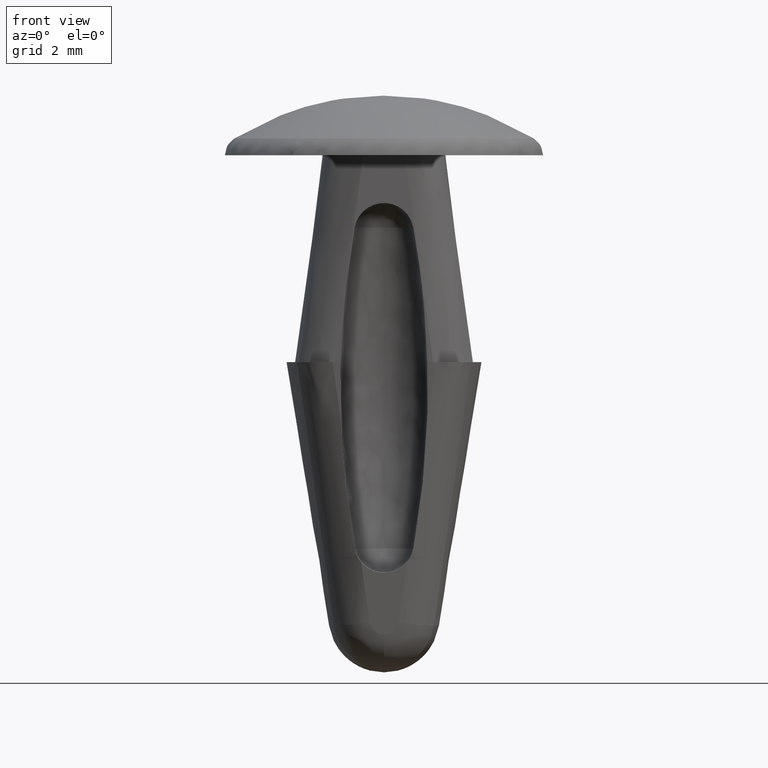
[diagram: clean part render]
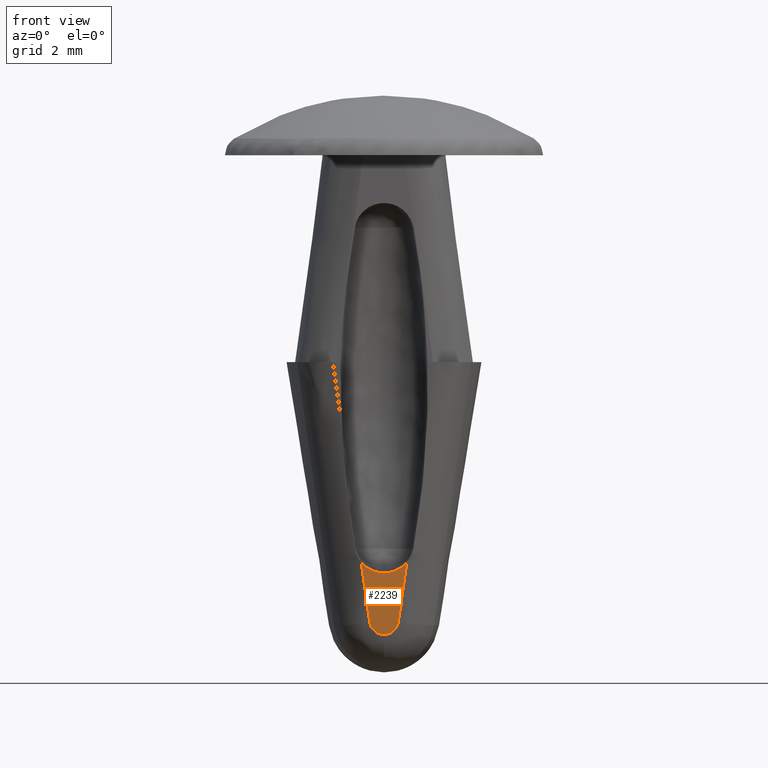
[diagram: same view with one face highlighted and labeled with its STEP entity id]
A machine part, front view. The second image highlights one B-rep face of the part: STEP entity #2239.
In plain terms, the highlighted face is a freeform B-spline surface patch.
Its self-contained STEP definition (entity closure, byte-faithful):
#298=CARTESIAN_POINT('',(5.472814E-009,-1.138355687538824,-12.048769655288041));
#299=VERTEX_POINT('',#298);
#315=CARTESIAN_POINT('',(-0.359079276135008,-1.161558786309562,-11.738178031591399));
#316=VERTEX_POINT('',#315);
#317=CARTESIAN_POINT('',(-0.359079276135008,-1.161558786309562,-11.738178031591399));
#318=CARTESIAN_POINT('',(-0.314616708430746,-1.138355614635077,-12.048770631187178));
#319=CARTESIAN_POINT('',(5.472814E-009,-1.138355687538824,-12.048769655288039));
#327=(BOUNDED_CURVE()B_SPLINE_CURVE(2,(#317,#318,#319),.UNSPECIFIED.,.F.,.U.)B_SPLINE_CURVE_WITH_KNOTS((3,3),(0.0,0.499996973655714),.UNSPECIFIED.)CURVE()GEOMETRIC_REPRESENTATION_ITEM()RATIONAL_B_SPLINE_CURVE((1.0,0.755420271649371,0.999997039270146))REPRESENTATION_ITEM(''));
#328=EDGE_CURVE('',#316,#299,#327,.T.);
#384=CARTESIAN_POINT('',(0.359081388878952,-1.161559197688182,-11.738172524966821));
#385=VERTEX_POINT('',#384);
#399=CARTESIAN_POINT('',(5.472814E-009,-1.138355687538824,-12.048769655288039));
#400=CARTESIAN_POINT('',(0.000001444016059,-1.138355687538463,-12.048769655292878));
#401=CARTESIAN_POINT('',(0.000002882559303,-1.138355687538951,-12.048769655286341));
#402=CARTESIAN_POINT('',(0.314622766314057,-1.138355794355715,-12.048768225485881));
#403=CARTESIAN_POINT('',(0.359081388878952,-1.161559197688182,-11.738172524966821));
#411=(BOUNDED_CURVE()B_SPLINE_CURVE(2,(#399,#400,#401,#402,#403),.UNSPECIFIED.,.F.,.U.)B_SPLINE_CURVE_WITH_KNOTS((3,2,3),(0.499996973655714,0.500000000000000,1.0),.UNSPECIFIED.)CURVE()GEOMETRIC_REPRESENTATION_ITEM()RATIONAL_B_SPLINE_CURVE((0.999997039270146,0.999998519626113,1.0,0.755418791275484,1.0))REPRESENTATION_ITEM(''));
#412=EDGE_CURVE('',#299,#385,#411,.T.);
#633=CARTESIAN_POINT('',(-0.574505067719825,-1.274070228132522,-10.232124389737120));
#634=VERTEX_POINT('',#633);
#646=CARTESIAN_POINT('',(0.574505067722556,-1.274070228133948,-10.232124389718020));
#647=VERTEX_POINT('',#646);
#648=CARTESIAN_POINT('',(0.574505067722556,-1.274070228133948,-10.232124389718020));
#649=CARTESIAN_POINT('',(0.349703978257832,-1.254058277494877,-10.499999999999011));
#650=CARTESIAN_POINT('',(2.123818E-012,-1.254058277494803,-10.500000000000000));
#651=CARTESIAN_POINT('',(-0.349703978253584,-1.254058277494729,-10.500000000000991));
#652=CARTESIAN_POINT('',(-0.574505067719825,-1.274070228132522,-10.232124389737120));
#660=(BOUNDED_CURVE()B_SPLINE_CURVE(2,(#648,#649,#650,#651,#652),.UNSPECIFIED.,.F.,.U.)B_SPLINE_CURVE_WITH_KNOTS((3,2,3),(0.0,0.500000000000000,1.0),.UNSPECIFIED.)CURVE()GEOMETRIC_REPRESENTATION_ITEM()RATIONAL_B_SPLINE_CURVE((1.0,0.906320175110975,1.0,0.906320175110975,1.0))REPRESENTATION_ITEM(''));
#661=EDGE_CURVE('',#647,#634,#660,.T.);
#2100=CARTESIAN_POINT('',(-0.574505067719825,-1.274070228132522,-10.232124389737120));
#2101=CARTESIAN_POINT('',(-0.502728952303088,-1.236566068958736,-10.734146891566240));
#2102=CARTESIAN_POINT('',(-0.430927571096161,-1.199062178288356,-11.236165799267271));
#2103=CARTESIAN_POINT('',(-0.359079276135008,-1.161558786309562,-11.738178031591399));
#2104=B_SPLINE_CURVE_WITH_KNOTS('',3,(#2100,#2101,#2102,#2103),.UNSPECIFIED.,.F.,.U.,(4,4),(0.005097149047127,0.006622686553908),.UNSPECIFIED.);
#2105=EDGE_CURVE('',#634,#316,#2104,.T.);
#2170=CARTESIAN_POINT('',(0.359081388878952,-1.161559197688182,-11.738172524966821));
#2171=CARTESIAN_POINT('',(0.396761273622858,-1.181226193445724,-11.474914405569629));
#2172=CARTESIAN_POINT('',(0.434422438630357,-1.200893388261009,-11.211653621628880));
#2173=CARTESIAN_POINT('',(0.472075729385561,-1.220560666701271,-10.948391718302410));
#2174=CARTESIAN_POINT('',(0.506223904413638,-1.238397133396048,-10.709636662032199));
#2175=CARTESIAN_POINT('',(0.540366609985045,-1.256233658201098,-10.470880827910561));
#2176=CARTESIAN_POINT('',(0.574505067722556,-1.274070228133948,-10.232124389718020));
#2177=B_SPLINE_CURVE_WITH_KNOTS('',3,(#2170,#2171,#2172,#2173,#2174,#2175,#2176),.UNSPECIFIED.,.F.,.U.,(4,3,4),(0.0,0.000800001635679,0.001525531738538),.UNSPECIFIED.);
#2178=EDGE_CURVE('',#385,#647,#2177,.T.);
#2227=CARTESIAN_POINT('',(-0.631898154116422,-1.280849175239143,-10.141382881029671));
#2228=CARTESIAN_POINT('',(-0.631898154116422,-1.131576722236674,-12.139511407607790));
#2229=CARTESIAN_POINT('',(0.631898154119153,-1.280849175239143,-10.141382881029671));
#2230=CARTESIAN_POINT('',(0.631898154119153,-1.131576722236674,-12.139511407607790));
#2231=B_SPLINE_SURFACE_WITH_KNOTS('',1,1,((#2227,#2229),(#2228,#2230)),.UNSPECIFIED.,.F.,.F.,.U.,(2,2),(2,2),(0.0,2.003696552362817),(0.041708311480284,0.958291688519716),.UNSPECIFIED.);
#2232=ORIENTED_EDGE('',*,*,#2178,.T.);
#2233=ORIENTED_EDGE('',*,*,#661,.T.);
#2234=ORIENTED_EDGE('',*,*,#2105,.T.);
#2235=ORIENTED_EDGE('',*,*,#328,.T.);
#2236=ORIENTED_EDGE('',*,*,#412,.T.);
#2237=EDGE_LOOP('',(#2232,#2233,#2234,#2235,#2236));
#2238=FACE_OUTER_BOUND('',#2237,.T.);
#2239=ADVANCED_FACE('',(#2238),#2231,.T.);